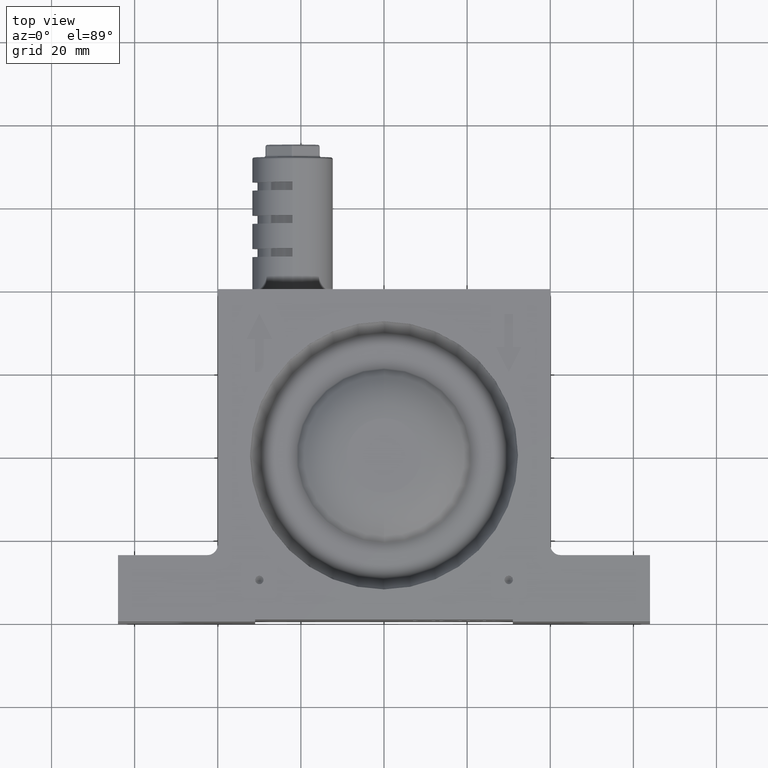
[diagram: clean part render]
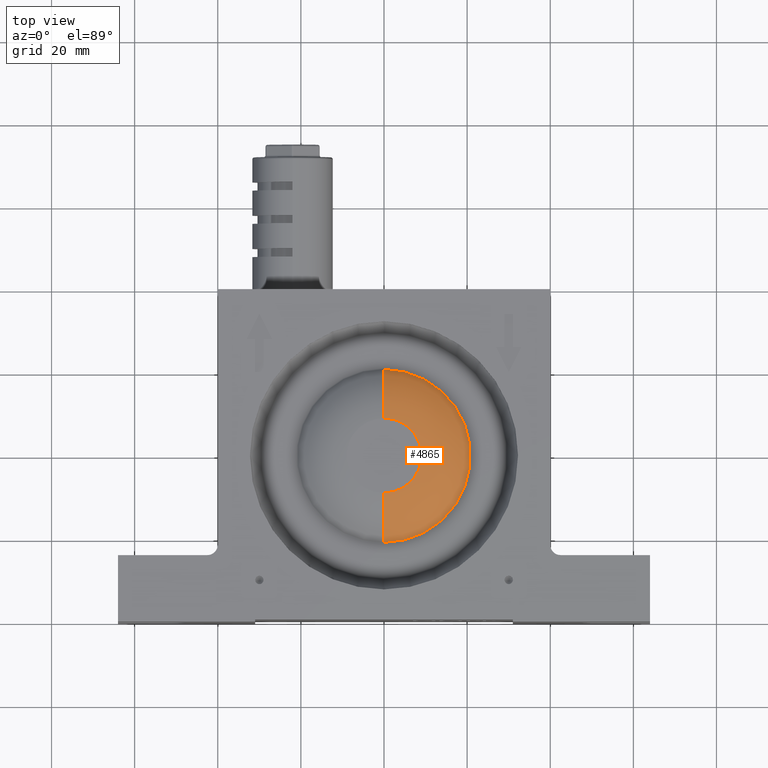
[diagram: same view with one face highlighted and labeled with its STEP entity id]
A machine part, top view. The second image highlights one B-rep face of the part: STEP entity #4865.
In plain terms, the highlighted toroidal blend (fillet) surface has major radius 9 mm and minor (blend) radius 16.8 mm.
Its self-contained STEP definition (entity closure, byte-faithful):
#433 = CARTESIAN_POINT ( 'NONE',  ( 3.427024385643870500E-015, 20.81392029005898400, 11.79450867052021800 ) ) ;
#576 = CARTESIAN_POINT ( 'NONE',  ( -1.419449843014140000E-016, -1.734723475976804900E-015, -0.1500000000000079900 ) ) ;
#617 = DIRECTION ( 'NONE',  ( 8.602726321297810600E-018, 1.224606353822375800E-016, 1.000000000000000000 ) ) ;
#641 = CARTESIAN_POINT ( 'NONE',  ( 1.356856098942547200E-015, 8.999999999999998200, -0.1500000000000091000 ) ) ;
#642 = DIRECTION ( 'NONE',  ( 1.665334536937734600E-016, 1.000000000000000000, 0.0000000000000000000 ) ) ;
#743 = DIRECTION ( 'NONE',  ( -2.889981336085087800E-016, -1.000000000000000000, 0.0000000000000000000 ) ) ;
#1226 = DIRECTION ( 'NONE',  ( 8.602726321297810600E-018, 1.224606353822375800E-016, 1.000000000000000000 ) ) ;
#1274 = CARTESIAN_POINT ( 'NONE',  ( 2.580817896389365400E-018, 3.673819061467395200E-017, 16.65000000000000200 ) ) ;
#1288 = AXIS2_PLACEMENT_3D ( 'NONE', #1339, #3668, #743 ) ;
#1339 = CARTESIAN_POINT ( 'NONE',  ( -2.742928186777993200E-015, -9.000000000000001800, -0.1500000000000068800 ) ) ;
#1811 = DIRECTION ( 'NONE',  ( -1.665334536937734300E-016, -1.000000000000000000, 8.334438932224284400E-017 ) ) ;
#2148 = ORIENTED_EDGE ( 'NONE', *, *, #2703, .T. ) ;
#2260 = AXIS2_PLACEMENT_3D ( 'NONE', #2915, #617, #1811 ) ;
#2301 = EDGE_CURVE ( 'NONE', #2682, #4899, #4743, .T. ) ;
#2361 = VERTEX_POINT ( 'NONE', #6377 ) ;
#2682 = VERTEX_POINT ( 'NONE', #4850 ) ;
#2703 = EDGE_CURVE ( 'NONE', #3187, #4899, #6901, .T. ) ;
#2915 = CARTESIAN_POINT ( 'NONE',  ( -3.918964516655945500E-017, -2.719913548562489900E-016, 11.79450867052021900 ) ) ;
#2990 = AXIS2_PLACEMENT_3D ( 'NONE', #641, #3509, #4675 ) ;
#3187 = VERTEX_POINT ( 'NONE', #433 ) ;
#3392 = TOROIDAL_SURFACE ( 'NONE', #5276, 9.000000000000000000, 16.80000000000000100 ) ;
#3453 = ORIENTED_EDGE ( 'NONE', *, *, #5228, .F. ) ;
#3509 = DIRECTION ( 'NONE',  ( 1.000000000000000000, -1.665334536937734800E-016, -8.602726321297790500E-018 ) ) ;
#3554 = ORIENTED_EDGE ( 'NONE', *, *, #2301, .F. ) ;
#3668 = DIRECTION ( 'NONE',  ( -1.000000000000000000, 2.889981336085088300E-016, 8.602726321297775100E-018 ) ) ;
#3872 = EDGE_CURVE ( 'NONE', #2361, #3187, #6062, .T. ) ;
#4299 = FACE_OUTER_BOUND ( 'NONE', #5805, .T. ) ;
#4393 = CIRCLE ( 'NONE', #1288, 16.80000000000000100 ) ;
#4675 = DIRECTION ( 'NONE',  ( 1.665334536937734800E-016, 1.000000000000000000, 0.0000000000000000000 ) ) ;
#4743 = CIRCLE ( 'NONE', #5935, 9.000000000000000000 ) ;
#4850 = CARTESIAN_POINT ( 'NONE',  ( -4.326388073325033000E-015, -9.000000000000000000, 16.65000000000000200 ) ) ;
#4865 = ADVANCED_FACE ( 'NONE', ( #4299 ), #3392, .T. ) ;
#4899 = VERTEX_POINT ( 'NONE', #7483 ) ;
#5228 = EDGE_CURVE ( 'NONE', #2361, #2682, #4393, .T. ) ;
#5276 = AXIS2_PLACEMENT_3D ( 'NONE', #576, #6252, #5701 ) ;
#5698 = ORIENTED_EDGE ( 'NONE', *, *, #3872, .T. ) ;
#5701 = DIRECTION ( 'NONE',  ( 1.665334536937735100E-016, 1.000000000000000000, -1.224606353822375800E-016 ) ) ;
#5805 = EDGE_LOOP ( 'NONE', ( #3453, #5698, #2148, #3554 ) ) ;
#5935 = AXIS2_PLACEMENT_3D ( 'NONE', #1274, #1226, #642 ) ;
#6062 = CIRCLE ( 'NONE', #2260, 20.81392029005900200 ) ;
#6252 = DIRECTION ( 'NONE',  ( 8.602726321297810600E-018, 1.224606353822375800E-016, 1.000000000000000000 ) ) ;
#6377 = CARTESIAN_POINT ( 'NONE',  ( -6.054373762069879400E-015, -20.81392029005898800, 11.79450867052022100 ) ) ;
#6901 = CIRCLE ( 'NONE', #2990, 16.80000000000000100 ) ;
#7483 = CARTESIAN_POINT ( 'NONE',  ( 1.501381901140350500E-015, 9.000000000000000000, 16.65000000000000200 ) ) ;